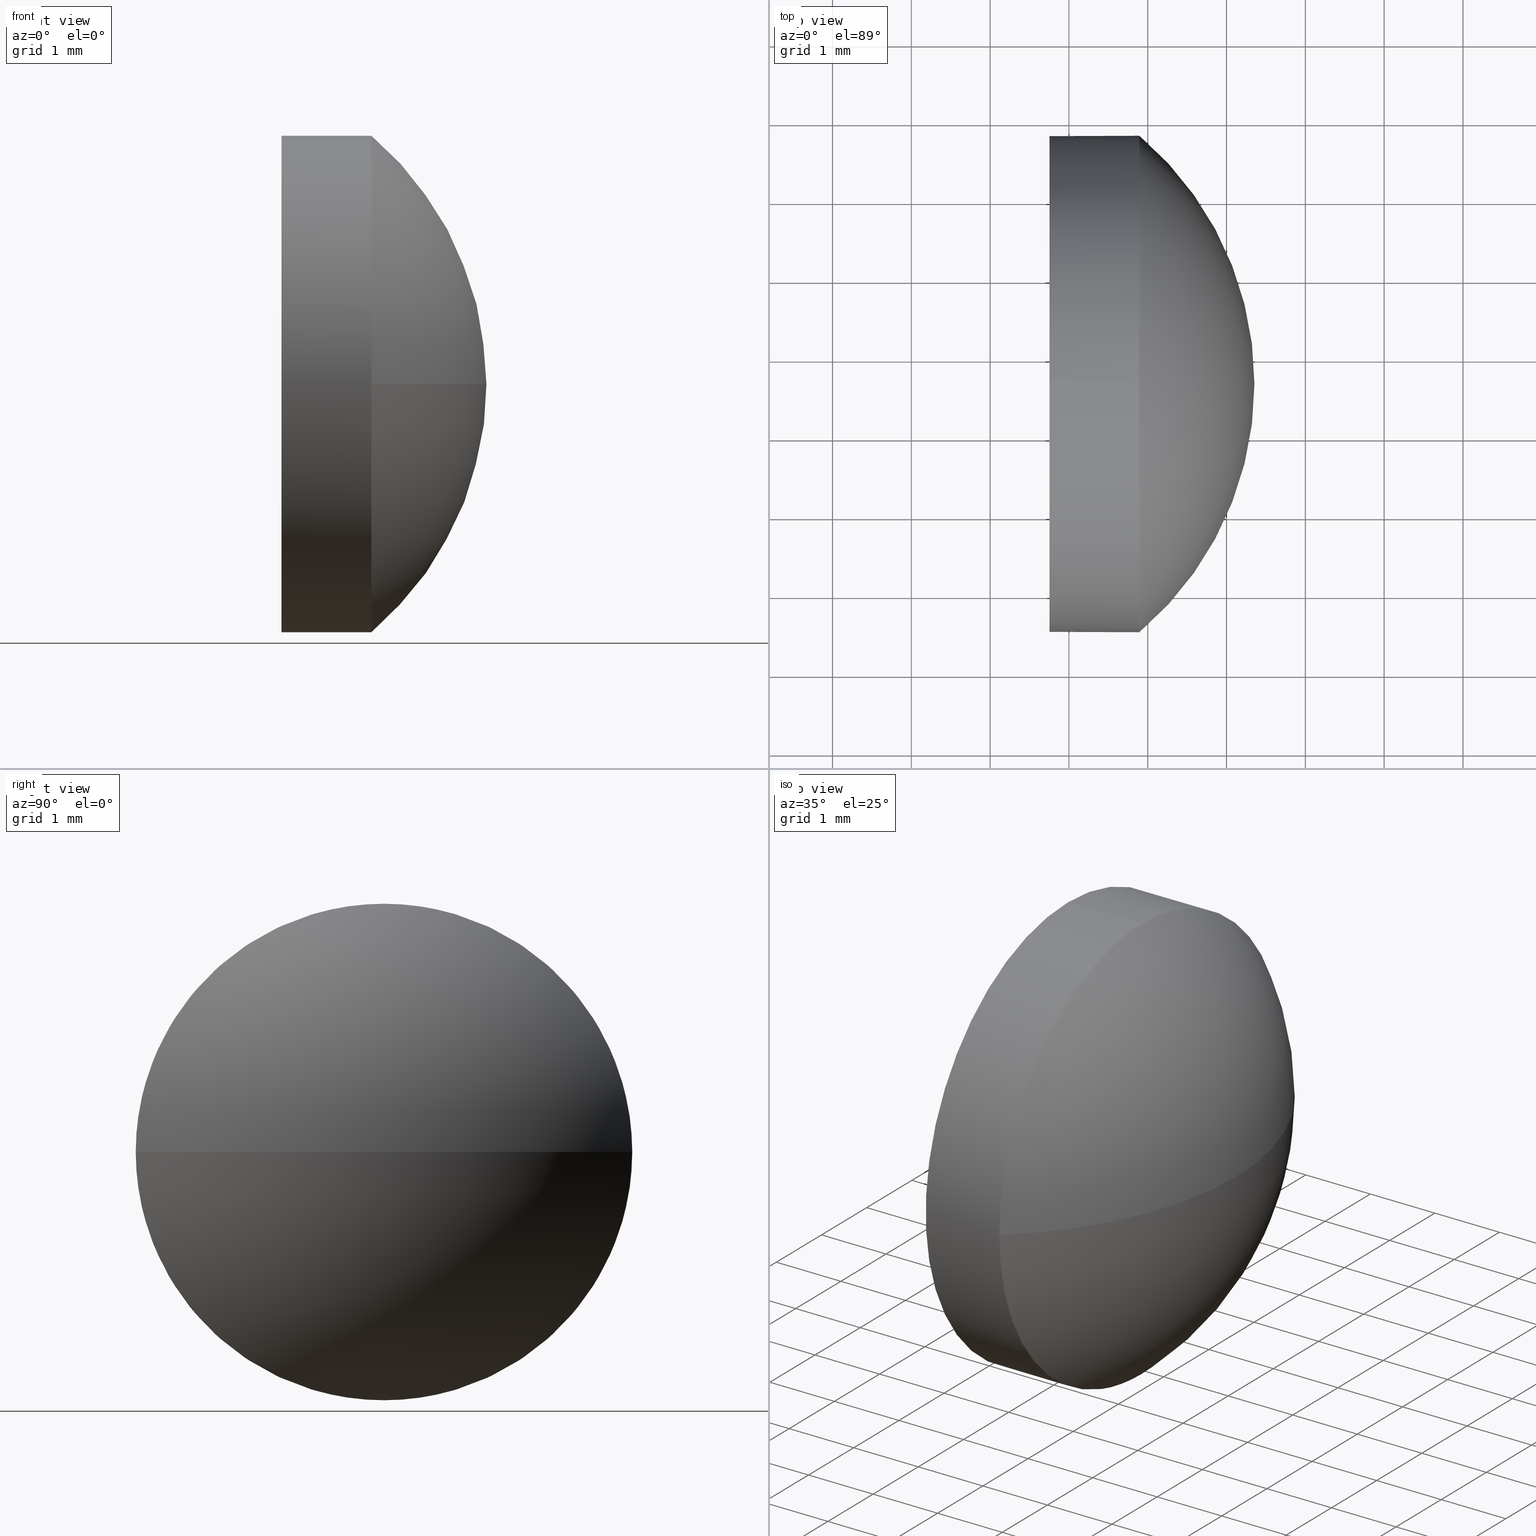
[diagram: canonical four-view strip — front | top / right | iso, engineering-drawing reading convention]
A machine part, canonical four-view strip (front | top / right | iso — engineering-drawing reading convention). The complete STEP part file that produces these views, byte-faithful:
ISO-10303-21;
HEADER;
FILE_DESCRIPTION (( 'STEP AP214' ),
    '1' );
FILE_NAME ('100178.STEP',
    '2019-05-21T01:59:10',
    ( '' ),
    ( '' ),
    'SwSTEP 2.0',
    'SolidWorks 2016',
    '' );
FILE_SCHEMA (( 'AUTOMOTIVE_DESIGN' ));
ENDSEC;

DATA;
#1 = DIRECTION ( 'NONE',  ( 0.0000000000000000000, 0.0000000000000000000, 1.000000000000000000 ) ) ;
#2 = DIRECTION ( 'NONE',  ( 0.0000000000000000000, 0.0000000000000000000, 1.000000000000000000 ) ) ;
#3 = ORIENTED_EDGE ( 'NONE', *, *, #90, .F. ) ;
#4 = CARTESIAN_POINT ( 'NONE',  ( 396.8941318018415800, -5.334423510750469600, -3.149999999999999900 ) ) ;
#5 = FILL_AREA_STYLE_COLOUR ( '', #39 ) ;
#6 = PRESENTATION_LAYER_ASSIGNMENT (  '', '', ( #111 ) ) ;
#7 = CARTESIAN_POINT ( 'NONE',  ( 394.9484213892996500, -5.334423510750469600, 0.0000000000000000000 ) ) ;
#8 = FILL_AREA_STYLE ('',( #146 ) ) ;
#9 = DIRECTION ( 'NONE',  ( 0.0000000000000000000, 0.0000000000000000000, 1.000000000000000000 ) ) ;
#10 = ORIENTED_EDGE ( 'NONE', *, *, #130, .T. ) ;
#11 = CARTESIAN_POINT ( 'NONE',  ( 394.2260153634854300, -5.334423510750465200, 0.0000000000000000000 ) ) ;
#12 = SPHERICAL_SURFACE ( 'NONE', #99, 4.128116438356141100 ) ;
#13 = VERTEX_POINT ( 'NONE', #114 ) ;
#14 = PRESENTATION_LAYER_ASSIGNMENT (  '', '', ( #124 ) ) ;
#15 = PRODUCT_DEFINITION_FORMATION_WITH_SPECIFIED_SOURCE ( '�κ�', '', #112, .NOT_KNOWN. ) ;
#16 = VERTEX_POINT ( 'NONE', #143 ) ;
#17 =( LENGTH_UNIT ( ) NAMED_UNIT ( * ) SI_UNIT ( .MILLI., .METRE. ) );
#18 = DIRECTION ( 'NONE',  ( 0.0000000000000000000, 0.0000000000000000000, 1.000000000000000000 ) ) ;
#19 =( NAMED_UNIT ( * ) SI_UNIT ( $, .STERADIAN. ) SOLID_ANGLE_UNIT ( ) );
#20 = CARTESIAN_POINT ( 'NONE',  ( 398.3541318018416200, -5.334423510750465200, 0.0000000000000000000 ) ) ;
#21 = AXIS2_PLACEMENT_3D ( 'NONE', #131, #86, #1 ) ;
#22 = DIRECTION ( 'NONE',  ( 0.0000000000000000000, -1.224646799147353200E-016, 1.000000000000000000 ) ) ;
#23 = ADVANCED_BREP_SHAPE_REPRESENTATION ( '100178', ( #171, #141 ), #67 ) ;
#24 = ADVANCED_FACE ( 'NONE', ( #54 ), #12, .T. ) ;
#25 = ORIENTED_EDGE ( 'NONE', *, *, #150, .F. ) ;
#26 = VERTEX_POINT ( 'NONE', #30 ) ;
#27 = ORIENTED_EDGE ( 'NONE', *, *, #122, .T. ) ;
#28 = SURFACE_STYLE_USAGE ( .BOTH. , #116 ) ;
#29 = SURFACE_SIDE_STYLE ('',( #47 ) ) ;
#30 = CARTESIAN_POINT ( 'NONE',  ( 396.8941318018415800, -8.484423510750467300, 0.0000000000000000000 ) ) ;
#31 = VERTEX_POINT ( 'NONE', #4 ) ;
#32 = DIRECTION ( 'NONE',  ( 1.000000000000000000, 0.0000000000000000000, 0.0000000000000000000 ) ) ;
#33 = DIRECTION ( 'NONE',  ( 0.0000000000000000000, 0.0000000000000000000, 1.000000000000000000 ) ) ;
#34 = AXIS2_PLACEMENT_3D ( 'NONE', #84, #83, #176 ) ;
#35 = ADVANCED_FACE ( 'NONE', ( #151 ), #85, .F. ) ;
#36 = CARTESIAN_POINT ( 'NONE',  ( 394.9484213892996500, -5.334423510750469600, 0.0000000000000000000 ) ) ;
#37 = VECTOR ( 'NONE', #72, 1000.000000000000000 ) ;
#38 = ORIENTED_EDGE ( 'NONE', *, *, #94, .T. ) ;
#39 = COLOUR_RGB ( '',1.000000000000000000, 1.000000000000000000, 1.000000000000000000 ) ;
#40 = VERTEX_POINT ( 'NONE', #73 ) ;
#41 = EDGE_CURVE ( 'NONE', #13, #97, #81, .T. ) ;
#42 = FACE_OUTER_BOUND ( 'NONE', #56, .T. ) ;
#43 = CIRCLE ( 'NONE', #120, 3.149999999999999900 ) ;
#44 = CARTESIAN_POINT ( 'NONE',  ( 394.9484213892996500, -5.334423510750469600, -3.149999999999999900 ) ) ;
#45 = FILL_AREA_STYLE ('',( #5 ) ) ;
#46 =( LENGTH_UNIT ( ) NAMED_UNIT ( * ) SI_UNIT ( .MILLI., .METRE. ) );
#47 = SURFACE_STYLE_FILL_AREA ( #8 ) ;
#48 = DIRECTION ( 'NONE',  ( 0.0000000000000000000, 0.0000000000000000000, -1.000000000000000000 ) ) ;
#49 = CARTESIAN_POINT ( 'NONE',  ( 396.8941318018415800, -5.334423510750469600, 0.0000000000000000000 ) ) ;
#50 = PRODUCT_DEFINITION_SHAPE ( 'NONE', 'NONE',  #98 ) ;
#51 = AXIS2_PLACEMENT_3D ( 'NONE', #58, #74, #178 ) ;
#52 = CYLINDRICAL_SURFACE ( 'NONE', #185, 3.149999999999999900 ) ;
#53 = ORIENTED_EDGE ( 'NONE', *, *, #60, .T. ) ;
#54 = FACE_OUTER_BOUND ( 'NONE', #135, .T. ) ;
#55 = DIRECTION ( 'NONE',  ( -1.000000000000000000, -0.0000000000000000000, -0.0000000000000000000 ) ) ;
#56 = EDGE_LOOP ( 'NONE', ( #102, #167, #66, #177, #25 ) ) ;
#57 =( NAMED_UNIT ( * ) SI_UNIT ( $, .STERADIAN. ) SOLID_ANGLE_UNIT ( ) );
#58 = CARTESIAN_POINT ( 'NONE',  ( 395.7541318018416000, -5.334423510750469600, 0.0000000000000000000 ) ) ;
#59 =( NAMED_UNIT ( * ) PLANE_ANGLE_UNIT ( ) SI_UNIT ( $, .RADIAN. ) );
#60 = EDGE_CURVE ( 'NONE', #13, #40, #64, .T. ) ;
#61 = EDGE_CURVE ( 'NONE', #31, #16, #186, .T. ) ;
#62 = ADVANCED_FACE ( 'NONE', ( #42 ), #180, .T. ) ;
#63 = ORIENTED_EDGE ( 'NONE', *, *, #150, .T. ) ;
#64 = CIRCLE ( 'NONE', #68, 3.149999999999999900 ) ;
#65 = CIRCLE ( 'NONE', #168, 4.128116438356140200 ) ;
#66 = ORIENTED_EDGE ( 'NONE', *, *, #170, .T. ) ;
#67 =( GEOMETRIC_REPRESENTATION_CONTEXT ( 3 ) GLOBAL_UNCERTAINTY_ASSIGNED_CONTEXT ( ( #82 ) ) GLOBAL_UNIT_ASSIGNED_CONTEXT ( ( #105, #156, #19 ) ) REPRESENTATION_CONTEXT ( 'NONE', 'WORKASPACE' ) );
#68 = AXIS2_PLACEMENT_3D ( 'NONE', #75, #117, #33 ) ;
#69 = ORIENTED_EDGE ( 'NONE', *, *, #130, .F. ) ;
#70 = APPLICATION_CONTEXT ( 'automotive_design' ) ;
#71 = SURFACE_STYLE_USAGE ( .BOTH. , #29 ) ;
#72 = DIRECTION ( 'NONE',  ( -1.000000000000000000, -0.0000000000000000000, -0.0000000000000000000 ) ) ;
#73 = CARTESIAN_POINT ( 'NONE',  ( 396.8941318018415800, -2.184423510750467000, 3.857637417314160200E-016 ) ) ;
#74 = DIRECTION ( 'NONE',  ( 1.000000000000000000, 0.0000000000000000000, 0.0000000000000000000 ) ) ;
#75 = CARTESIAN_POINT ( 'NONE',  ( 396.8941318018415800, -5.334423510750469600, 0.0000000000000000000 ) ) ;
#76 = CARTESIAN_POINT ( 'NONE',  ( 395.7541318018416000, -5.334423510750469600, 3.149999999999999900 ) ) ;
#77 = CIRCLE ( 'NONE', #21, 3.149999999999999900 ) ;
#78 = FACE_OUTER_BOUND ( 'NONE', #137, .T. ) ;
#79 = ORIENTED_EDGE ( 'NONE', *, *, #158, .F. ) ;
#80 = CIRCLE ( 'NONE', #101, 3.149999999999999900 ) ;
#81 = LINE ( 'NONE', #159, #37 ) ;
#82 = UNCERTAINTY_MEASURE_WITH_UNIT (LENGTH_MEASURE( 1.000000000000000100E-005 ), #105, 'distance_accuracy_value', 'NONE');
#83 = DIRECTION ( 'NONE',  ( -1.000000000000000000, -0.0000000000000000000, -0.0000000000000000000 ) ) ;
#84 = CARTESIAN_POINT ( 'NONE',  ( 396.8941318018415800, -5.334423510750469600, 0.0000000000000000000 ) ) ;
#85 = PLANE ( 'NONE',  #51 ) ;
#86 = DIRECTION ( 'NONE',  ( -1.000000000000000000, -0.0000000000000000000, -0.0000000000000000000 ) ) ;
#87 = PRODUCT_DEFINITION_CONTEXT ( 'detailed design', #162, 'design' ) ;
#88 = APPLICATION_PROTOCOL_DEFINITION ( 'draft international standard', 'automotive_design', 1998, #162 ) ;
#89 = VERTEX_POINT ( 'NONE', #20 ) ;
#90 = EDGE_CURVE ( 'NONE', #31, #26, #43, .T. ) ;
#91 = ADVANCED_FACE ( 'NONE', ( #127 ), #145, .T. ) ;
#92 = CARTESIAN_POINT ( 'NONE',  ( 394.2260153634854300, -5.334423510750465200, 0.0000000000000000000 ) ) ;
#93 = EDGE_LOOP ( 'NONE', ( #100, #63 ) ) ;
#94 = EDGE_CURVE ( 'NONE', #89, #26, #148, .T. ) ;
#95 = COLOUR_RGB ( '',1.000000000000000000, 1.000000000000000000, 1.000000000000000000 ) ;
#96 = CLOSED_SHELL ( 'NONE', ( #133, #24, #91, #62, #35 ) ) ;
#97 = VERTEX_POINT ( 'NONE', #76 ) ;
#98 = PRODUCT_DEFINITION ( 'δ֪', '', #15, #87 ) ;
#99 = AXIS2_PLACEMENT_3D ( 'NONE', #157, #172, #106 ) ;
#100 = ORIENTED_EDGE ( 'NONE', *, *, #158, .T. ) ;
#101 = AXIS2_PLACEMENT_3D ( 'NONE', #129, #55, #179 ) ;
#102 = ORIENTED_EDGE ( 'NONE', *, *, #61, .F. ) ;
#103 = PRESENTATION_STYLE_ASSIGNMENT (( #28 ) ) ;
#104 = DIRECTION ( 'NONE',  ( -1.000000000000000000, -0.0000000000000000000, -0.0000000000000000000 ) ) ;
#105 =( LENGTH_UNIT ( ) NAMED_UNIT ( * ) SI_UNIT ( .MILLI., .METRE. ) );
#106 = DIRECTION ( 'NONE',  ( 0.0000000000000000000, -1.000000000000000000, 0.0000000000000000000 ) ) ;
#107 = DIRECTION ( 'NONE',  ( 0.0000000000000000000, -1.000000000000000000, 0.0000000000000000000 ) ) ;
#108 = DIRECTION ( 'NONE',  ( 0.0000000000000000000, 0.0000000000000000000, 1.000000000000000000 ) ) ;
#109 = ORIENTED_EDGE ( 'NONE', *, *, #170, .F. ) ;
#110 = AXIS2_PLACEMENT_3D ( 'NONE', #175, #118, #126 ) ;
#111 = STYLED_ITEM ( 'NONE', ( #166 ), #23 ) ;
#112 = PRODUCT ( '100178', '100178', '', ( #147 ) ) ;
#113 = ORIENTED_EDGE ( 'NONE', *, *, #94, .F. ) ;
#114 = CARTESIAN_POINT ( 'NONE',  ( 396.8941318018415800, -5.334423510750469600, 3.149999999999999900 ) ) ;
#115 = CIRCLE ( 'NONE', #34, 3.149999999999999900 ) ;
#116 = SURFACE_SIDE_STYLE ('',( #142 ) ) ;
#117 = DIRECTION ( 'NONE',  ( -1.000000000000000000, -0.0000000000000000000, -0.0000000000000000000 ) ) ;
#118 = DIRECTION ( 'NONE',  ( -1.000000000000000000, -0.0000000000000000000, -0.0000000000000000000 ) ) ;
#119 = DIRECTION ( 'NONE',  ( -1.000000000000000000, -0.0000000000000000000, -0.0000000000000000000 ) ) ;
#120 = AXIS2_PLACEMENT_3D ( 'NONE', #49, #165, #9 ) ;
#121 = DIRECTION ( 'NONE',  ( 0.0000000000000000000, -1.000000000000000000, -1.224646799147353200E-016 ) ) ;
#122 = EDGE_CURVE ( 'NONE', #89, #40, #65, .T. ) ;
#123 = MECHANICAL_DESIGN_GEOMETRIC_PRESENTATION_REPRESENTATION (  '', ( #111 ), #153 ) ;
#124 = STYLED_ITEM ( 'NONE', ( #103 ), #171 ) ;
#125 = AXIS2_PLACEMENT_3D ( 'NONE', #11, #48, #136 ) ;
#126 = DIRECTION ( 'NONE',  ( 0.0000000000000000000, 0.0000000000000000000, 1.000000000000000000 ) ) ;
#127 = FACE_OUTER_BOUND ( 'NONE', #140, .T. ) ;
#128 = DIRECTION ( 'NONE',  ( 0.0000000000000000000, 0.0000000000000000000, 1.000000000000000000 ) ) ;
#129 = CARTESIAN_POINT ( 'NONE',  ( 395.7541318018416000, -5.334423510750469600, 0.0000000000000000000 ) ) ;
#130 = EDGE_CURVE ( 'NONE', #40, #31, #115, .T. ) ;
#131 = CARTESIAN_POINT ( 'NONE',  ( 396.8941318018415800, -5.334423510750469600, 0.0000000000000000000 ) ) ;
#132 = MECHANICAL_DESIGN_GEOMETRIC_PRESENTATION_REPRESENTATION (  '', ( #124 ), #138 ) ;
#133 = ADVANCED_FACE ( 'NONE', ( #78 ), #52, .T. ) ;
#134 = APPLICATION_PROTOCOL_DEFINITION ( 'draft international standard', 'automotive_design', 1998, #70 ) ;
#135 = EDGE_LOOP ( 'NONE', ( #113, #27, #164, #109 ) ) ;
#136 = DIRECTION ( 'NONE',  ( -1.000000000000000000, 0.0000000000000000000, 0.0000000000000000000 ) ) ;
#137 = EDGE_LOOP ( 'NONE', ( #10, #182, #79, #184, #53 ) ) ;
#138 =( GEOMETRIC_REPRESENTATION_CONTEXT ( 3 ) GLOBAL_UNCERTAINTY_ASSIGNED_CONTEXT ( ( #155 ) ) GLOBAL_UNIT_ASSIGNED_CONTEXT ( ( #46, #144, #57 ) ) REPRESENTATION_CONTEXT ( 'NONE', 'WORKASPACE' ) );
#139 = AXIS2_PLACEMENT_3D ( 'NONE', #7, #104, #18 ) ;
#140 = EDGE_LOOP ( 'NONE', ( #149, #38, #3, #69 ) ) ;
#141 = AXIS2_PLACEMENT_3D ( 'NONE', #173, #2, #32 ) ;
#142 = SURFACE_STYLE_FILL_AREA ( #45 ) ;
#143 = CARTESIAN_POINT ( 'NONE',  ( 395.7541318018416000, -5.334423510750469600, -3.149999999999999900 ) ) ;
#144 =( NAMED_UNIT ( * ) PLANE_ANGLE_UNIT ( ) SI_UNIT ( $, .RADIAN. ) );
#145 = SPHERICAL_SURFACE ( 'NONE', #154, 4.128116438356141100 ) ;
#146 = FILL_AREA_STYLE_COLOUR ( '', #95 ) ;
#147 = PRODUCT_CONTEXT ( 'NONE', #70, 'mechanical' ) ;
#148 = CIRCLE ( 'NONE', #125, 4.128116438356144600 ) ;
#149 = ORIENTED_EDGE ( 'NONE', *, *, #122, .F. ) ;
#150 = EDGE_CURVE ( 'NONE', #16, #97, #183, .T. ) ;
#151 = FACE_OUTER_BOUND ( 'NONE', #93, .T. ) ;
#152 = VECTOR ( 'NONE', #174, 1000.000000000000000 ) ;
#153 =( GEOMETRIC_REPRESENTATION_CONTEXT ( 3 ) GLOBAL_UNCERTAINTY_ASSIGNED_CONTEXT ( ( #181 ) ) GLOBAL_UNIT_ASSIGNED_CONTEXT ( ( #17, #59, #160 ) ) REPRESENTATION_CONTEXT ( 'NONE', 'WORKASPACE' ) );
#154 = AXIS2_PLACEMENT_3D ( 'NONE', #163, #128, #107 ) ;
#155 = UNCERTAINTY_MEASURE_WITH_UNIT (LENGTH_MEASURE( 1.000000000000000100E-005 ), #46, 'distance_accuracy_value', 'NONE');
#156 =( NAMED_UNIT ( * ) PLANE_ANGLE_UNIT ( ) SI_UNIT ( $, .RADIAN. ) );
#157 = CARTESIAN_POINT ( 'NONE',  ( 394.2260153634854300, -5.334423510750465200, 0.0000000000000000000 ) ) ;
#158 = EDGE_CURVE ( 'NONE', #97, #16, #80, .T. ) ;
#159 = CARTESIAN_POINT ( 'NONE',  ( 394.9484213892996500, -5.334423510750469600, 3.149999999999999900 ) ) ;
#160 =( NAMED_UNIT ( * ) SI_UNIT ( $, .STERADIAN. ) SOLID_ANGLE_UNIT ( ) );
#161 = PRODUCT_RELATED_PRODUCT_CATEGORY ( 'part', '', ( #112 ) ) ;
#162 = APPLICATION_CONTEXT ( 'automotive_design' ) ;
#163 = CARTESIAN_POINT ( 'NONE',  ( 394.2260153634854300, -5.334423510750465200, 0.0000000000000000000 ) ) ;
#164 = ORIENTED_EDGE ( 'NONE', *, *, #60, .F. ) ;
#165 = DIRECTION ( 'NONE',  ( -1.000000000000000000, -0.0000000000000000000, -0.0000000000000000000 ) ) ;
#166 = PRESENTATION_STYLE_ASSIGNMENT (( #71 ) ) ;
#167 = ORIENTED_EDGE ( 'NONE', *, *, #90, .T. ) ;
#168 = AXIS2_PLACEMENT_3D ( 'NONE', #92, #22, #121 ) ;
#169 = SHAPE_DEFINITION_REPRESENTATION ( #50, #23 ) ;
#170 = EDGE_CURVE ( 'NONE', #26, #13, #77, .T. ) ;
#171 = MANIFOLD_SOLID_BREP ( '��ת1', #96 ) ;
#172 = DIRECTION ( 'NONE',  ( 0.0000000000000000000, 0.0000000000000000000, 1.000000000000000000 ) ) ;
#173 = CARTESIAN_POINT ( 'NONE',  ( 0.0000000000000000000, 0.0000000000000000000, 0.0000000000000000000 ) ) ;
#174 = DIRECTION ( 'NONE',  ( -1.000000000000000000, -0.0000000000000000000, -0.0000000000000000000 ) ) ;
#175 = CARTESIAN_POINT ( 'NONE',  ( 395.7541318018416000, -5.334423510750469600, 0.0000000000000000000 ) ) ;
#176 = DIRECTION ( 'NONE',  ( 0.0000000000000000000, 0.0000000000000000000, 1.000000000000000000 ) ) ;
#177 = ORIENTED_EDGE ( 'NONE', *, *, #41, .T. ) ;
#178 = DIRECTION ( 'NONE',  ( 0.0000000000000000000, 0.0000000000000000000, -1.000000000000000000 ) ) ;
#179 = DIRECTION ( 'NONE',  ( 0.0000000000000000000, 0.0000000000000000000, 1.000000000000000000 ) ) ;
#180 = CYLINDRICAL_SURFACE ( 'NONE', #139, 3.149999999999999900 ) ;
#181 = UNCERTAINTY_MEASURE_WITH_UNIT (LENGTH_MEASURE( 1.000000000000000100E-005 ), #17, 'distance_accuracy_value', 'NONE');
#182 = ORIENTED_EDGE ( 'NONE', *, *, #61, .T. ) ;
#183 = CIRCLE ( 'NONE', #110, 3.149999999999999900 ) ;
#184 = ORIENTED_EDGE ( 'NONE', *, *, #41, .F. ) ;
#185 = AXIS2_PLACEMENT_3D ( 'NONE', #36, #119, #108 ) ;
#186 = LINE ( 'NONE', #44, #152 ) ;
ENDSEC;
END-ISO-10303-21;
